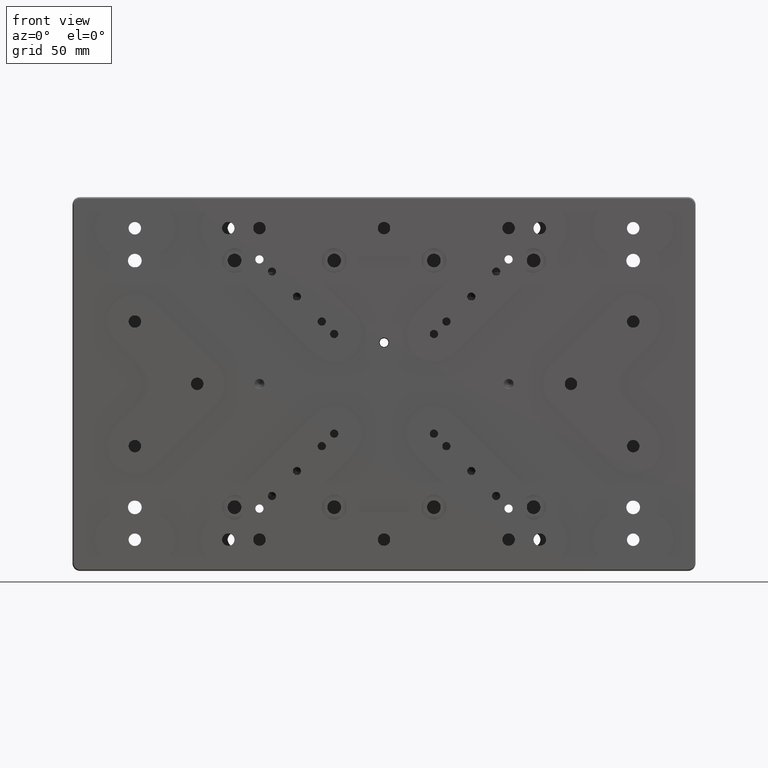
[diagram: clean part render]
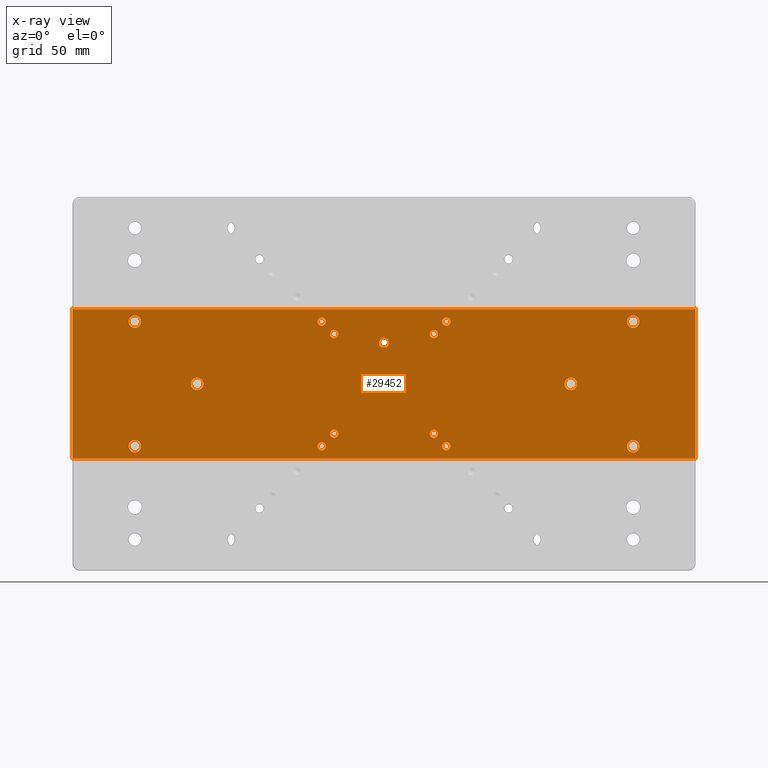
[diagram: x-ray — body ghosted, one internal face saturated and labeled with its STEP entity id]
A machine part, front view, then the same camera in x-ray: the body is ghosted and one INTERNAL B-rep face — a face not visible from any outside direction — is saturated and labeled: STEP entity #29452.
In plain terms, the highlighted planar face has unit normal (0, 1, 0).
Its self-contained STEP definition (entity closure, byte-faithful):
#65 = DIRECTION ( 'NONE',  ( 0.000000000000000000, -1.000000000000000000, 0.000000000000000000 ) ) ;
#69 = LINE ( 'NONE', #10940, #31360 ) ;
#232 = CARTESIAN_POINT ( 'NONE',  ( -25.00000000000000000, -11.50000000000000000, 25.00000000000000000 ) ) ;
#299 = EDGE_LOOP ( 'NONE', ( #26394 ) ) ;
#330 = CIRCLE ( 'NONE', #27154, 2.499999999999998668 ) ;
#509 = FACE_BOUND ( 'NONE', #10837, .T. ) ;
#673 = FACE_BOUND ( 'NONE', #31750, .T. ) ;
#863 = FACE_BOUND ( 'NONE', #31846, .T. ) ;
#1317 = AXIS2_PLACEMENT_3D ( 'NONE', #28693, #4222, #1544 ) ;
#1420 = AXIS2_PLACEMENT_3D ( 'NONE', #4090, #6609, #34471 ) ;
#1447 = CARTESIAN_POINT ( 'NONE',  ( -125.0000000000000000, -11.50000000000000000, -30.00000000000000000 ) ) ;
#1544 = DIRECTION ( 'NONE',  ( 0.000000000000000000, 0.000000000000000000, -1.000000000000000000 ) ) ;
#1662 = CARTESIAN_POINT ( 'NONE',  ( -100.0000000000000000, -11.50000000000000000, 25.00000000000000000 ) ) ;
#1830 = AXIS2_PLACEMENT_3D ( 'NONE', #15720, #32511, #27334 ) ;
#2527 = VERTEX_POINT ( 'NONE', #32002 ) ;
#2661 = VERTEX_POINT ( 'NONE', #13168 ) ;
#2836 = DIRECTION ( 'NONE',  ( 0.000000000000000000, 0.000000000000000000, -1.000000000000000000 ) ) ;
#2873 = VERTEX_POINT ( 'NONE', #13748 ) ;
#3050 = CIRCLE ( 'NONE', #5344, 2.500000000000000000 ) ;
#3084 = DIRECTION ( 'NONE',  ( 0.000000000000000000, -1.000000000000000000, 0.000000000000000000 ) ) ;
#3153 = ORIENTED_EDGE ( 'NONE', *, *, #13396, .T. ) ;
#3167 = CARTESIAN_POINT ( 'NONE',  ( -124.5000000000000000, -11.49999999999999645, -30.50000000000000000 ) ) ;
#3186 = FACE_BOUND ( 'NONE', #20666, .T. ) ;
#3304 = LINE ( 'NONE', #5791, #30454 ) ;
#4090 = CARTESIAN_POINT ( 'NONE',  ( -25.00000000000000000, -11.50000000000000000, -25.00000000000000000 ) ) ;
#4222 = DIRECTION ( 'NONE',  ( 0.000000000000000000, -1.000000000000000000, 0.000000000000000000 ) ) ;
#4281 = AXIS2_PLACEMENT_3D ( 'NONE', #17835, #15164, #26072 ) ;
#4713 = EDGE_LOOP ( 'NONE', ( #7370 ) ) ;
#4797 = CARTESIAN_POINT ( 'NONE',  ( 125.0000000000000000, -11.50000000000000178, -30.50000000000000000 ) ) ;
#4851 = DIRECTION ( 'NONE',  ( -0.000000000000000000, 0.000000000000000000, -1.000000000000000000 ) ) ;
#4875 = EDGE_LOOP ( 'NONE', ( #13585 ) ) ;
#4988 = CARTESIAN_POINT ( 'NONE',  ( 75.00000000000000000, -11.50000000000000000, -2.500000000000000000 ) ) ;
#5112 = VERTEX_POINT ( 'NONE', #23502 ) ;
#5207 = VERTEX_POINT ( 'NONE', #30903 ) ;
#5229 = DIRECTION ( 'NONE',  ( 0.000000000000000000, -1.000000000000000000, 0.000000000000000000 ) ) ;
#5272 = EDGE_CURVE ( 'NONE', #23163, #23163, #22255, .T. ) ;
#5344 = AXIS2_PLACEMENT_3D ( 'NONE', #34617, #15644, #12966 ) ;
#5723 = VERTEX_POINT ( 'NONE', #30749 ) ;
#5791 = CARTESIAN_POINT ( 'NONE',  ( -125.0000000000000000, -11.50000000000000000, -30.00000000000000000 ) ) ;
#5849 = PLANE ( 'NONE',  #20432 ) ;
#6140 = CARTESIAN_POINT ( 'NONE',  ( 124.5000000000000000, -11.50000000000000178, -30.00000000000000000 ) ) ;
#6376 = ORIENTED_EDGE ( 'NONE', *, *, #5272, .T. ) ;
#6420 = ORIENTED_EDGE ( 'NONE', *, *, #7677, .T. ) ;
#6479 = CIRCLE ( 'NONE', #26483, 1.649999999999998579 ) ;
#6609 = DIRECTION ( 'NONE',  ( 0.000000000000000000, -1.000000000000000000, 0.000000000000000000 ) ) ;
#6765 = CARTESIAN_POINT ( 'NONE',  ( 25.00000000000000000, -11.50000000000000000, 25.00000000000000000 ) ) ;
#6795 = LINE ( 'NONE', #1447, #30970 ) ;
#6894 = CARTESIAN_POINT ( 'NONE',  ( -20.00000000000000000, -11.50000000000000000, -20.00000000000000000 ) ) ;
#7057 = ORIENTED_EDGE ( 'NONE', *, *, #20765, .F. ) ;
#7095 = CARTESIAN_POINT ( 'NONE',  ( -100.0000000000000000, -11.50000000000000000, -27.50000000000000000 ) ) ;
#7370 = ORIENTED_EDGE ( 'NONE', *, *, #14129, .T. ) ;
#7622 = CIRCLE ( 'NONE', #27004, 1.649999999999998579 ) ;
#7677 = EDGE_CURVE ( 'NONE', #5112, #5112, #10997, .T. ) ;
#7712 = ORIENTED_EDGE ( 'NONE', *, *, #11577, .T. ) ;
#7749 = AXIS2_PLACEMENT_3D ( 'NONE', #3167, #33014, #35169 ) ;
#7811 = ORIENTED_EDGE ( 'NONE', *, *, #33469, .T. ) ;
#7878 = LINE ( 'NONE', #29671, #15636 ) ;
#7958 = EDGE_CURVE ( 'NONE', #31452, #5207, #3304, .T. ) ;
#8004 = ORIENTED_EDGE ( 'NONE', *, *, #32095, .T. ) ;
#8538 = FACE_BOUND ( 'NONE', #32558, .T. ) ;
#9030 = ORIENTED_EDGE ( 'NONE', *, *, #30472, .F. ) ;
#9117 = VERTEX_POINT ( 'NONE', #27787 ) ;
#9616 = ORIENTED_EDGE ( 'NONE', *, *, #28566, .T. ) ;
#9719 = EDGE_CURVE ( 'NONE', #9117, #13105, #7878, .T. ) ;
#9967 = CARTESIAN_POINT ( 'NONE',  ( 25.00000000000000000, -11.50000000000000000, -25.00000000000000000 ) ) ;
#10371 = AXIS2_PLACEMENT_3D ( 'NONE', #6894, #15817, #29418 ) ;
#10474 = CARTESIAN_POINT ( 'NONE',  ( -100.0000000000000000, -11.50000000000000000, -25.00000000000000000 ) ) ;
#10682 = VERTEX_POINT ( 'NONE', #4988 ) ;
#10837 = EDGE_LOOP ( 'NONE', ( #9616 ) ) ;
#10940 = CARTESIAN_POINT ( 'NONE',  ( -125.0000000000000000, -11.50000000000000000, 30.00000000000000000 ) ) ;
#10985 = EDGE_LOOP ( 'NONE', ( #11486 ) ) ;
#10997 = CIRCLE ( 'NONE', #1317, 2.499999999999998668 ) ;
#11486 = ORIENTED_EDGE ( 'NONE', *, *, #35239, .T. ) ;
#11505 = CIRCLE ( 'NONE', #1830, 0.5000000000000004441 ) ;
#11577 = EDGE_CURVE ( 'NONE', #26469, #26469, #6479, .T. ) ;
#11888 = ORIENTED_EDGE ( 'NONE', *, *, #17295, .T. ) ;
#12288 = DIRECTION ( 'NONE',  ( 0.000000000000000000, -1.000000000000000000, 0.000000000000000000 ) ) ;
#12480 = VERTEX_POINT ( 'NONE', #32213 ) ;
#12521 = AXIS2_PLACEMENT_3D ( 'NONE', #34833, #13017, #2836 ) ;
#12644 = VERTEX_POINT ( 'NONE', #23028 ) ;
#12696 = VERTEX_POINT ( 'NONE', #19456 ) ;
#12895 = DIRECTION ( 'NONE',  ( -0.000000000000000000, 1.000000000000000000, -0.000000000000000000 ) ) ;
#12966 = DIRECTION ( 'NONE',  ( 0.000000000000000000, 0.000000000000000000, -1.000000000000000000 ) ) ;
#13017 = DIRECTION ( 'NONE',  ( -0.000000000000000000, 1.000000000000000000, -0.000000000000000000 ) ) ;
#13059 = DIRECTION ( 'NONE',  ( 0.000000000000000000, 0.000000000000000000, -1.000000000000000000 ) ) ;
#13105 = VERTEX_POINT ( 'NONE', #4797 ) ;
#13168 = CARTESIAN_POINT ( 'NONE',  ( 20.00000000000000000, -11.50000000000000000, -21.64999999999999858 ) ) ;
#13360 = VERTEX_POINT ( 'NONE', #30002 ) ;
#13396 = EDGE_CURVE ( 'NONE', #17891, #17891, #34915, .T. ) ;
#13585 = ORIENTED_EDGE ( 'NONE', *, *, #21908, .T. ) ;
#13706 = FACE_BOUND ( 'NONE', #10985, .T. ) ;
#13732 = EDGE_CURVE ( 'NONE', #9117, #12480, #11505, .T. ) ;
#13748 = CARTESIAN_POINT ( 'NONE',  ( -75.00000000000000000, -11.50000000000000000, -2.500000000000000000 ) ) ;
#13886 = FACE_BOUND ( 'NONE', #16415, .T. ) ;
#13939 = VERTEX_POINT ( 'NONE', #22690 ) ;
#13972 = DIRECTION ( 'NONE',  ( 0.000000000000000000, 0.000000000000000000, -1.000000000000000000 ) ) ;
#13991 = AXIS2_PLACEMENT_3D ( 'NONE', #15754, #12895, #21468 ) ;
#14129 = EDGE_CURVE ( 'NONE', #2527, #2527, #28068, .T. ) ;
#14292 = DIRECTION ( 'NONE',  ( 0.000000000000000000, -0.000000000000000000, 1.000000000000000000 ) ) ;
#14533 = DIRECTION ( 'NONE',  ( -1.000000000000000000, -0.000000000000000000, 0.000000000000000000 ) ) ;
#14762 = CARTESIAN_POINT ( 'NONE',  ( -20.00000000000000000, -11.50000000000000000, 18.35000000000000142 ) ) ;
#15032 = CARTESIAN_POINT ( 'NONE',  ( 25.00000000000000000, -11.50000000000000000, 23.35000000000000142 ) ) ;
#15156 = CIRCLE ( 'NONE', #7749, 0.5000000000000004441 ) ;
#15164 = DIRECTION ( 'NONE',  ( 0.000000000000000000, -1.000000000000000000, 0.000000000000000000 ) ) ;
#15316 = EDGE_CURVE ( 'NONE', #2873, #2873, #3050, .T. ) ;
#15636 = VECTOR ( 'NONE', #4851, 1000.000000000000000 ) ;
#15644 = DIRECTION ( 'NONE',  ( 0.000000000000000000, -1.000000000000000000, 0.000000000000000000 ) ) ;
#15720 = CARTESIAN_POINT ( 'NONE',  ( 124.5000000000000000, -11.49999999999999645, 30.50000000000000000 ) ) ;
#15754 = CARTESIAN_POINT ( 'NONE',  ( 124.5000000000000000, -11.50000000000000355, -30.50000000000000000 ) ) ;
#15809 = CARTESIAN_POINT ( 'NONE',  ( 0.000000000000000000, -11.50000000000000000, 16.57000000000000028 ) ) ;
#15817 = DIRECTION ( 'NONE',  ( 0.000000000000000000, -1.000000000000000000, 0.000000000000000000 ) ) ;
#15972 = AXIS2_PLACEMENT_3D ( 'NONE', #21834, #65, #30081 ) ;
#16012 = DIRECTION ( 'NONE',  ( 0.000000000000000000, 0.000000000000000000, -1.000000000000000000 ) ) ;
#16392 = CARTESIAN_POINT ( 'NONE',  ( -125.0000000000000000, -11.50000000000000000, -30.00000000000000000 ) ) ;
#16415 = EDGE_LOOP ( 'NONE', ( #19361 ) ) ;
#16495 = VERTEX_POINT ( 'NONE', #31798 ) ;
#16600 = EDGE_CURVE ( 'NONE', #13939, #13939, #33387, .T. ) ;
#16605 = VERTEX_POINT ( 'NONE', #32997 ) ;
#16623 = EDGE_LOOP ( 'NONE', ( #3153 ) ) ;
#16742 = DIRECTION ( 'NONE',  ( 0.000000000000000000, -0.000000000000000000, 1.000000000000000000 ) ) ;
#16816 = CIRCLE ( 'NONE', #1420, 1.649999999999998579 ) ;
#16937 = CARTESIAN_POINT ( 'NONE',  ( 25.00000000000000000, -11.50000000000000000, -26.64999999999999858 ) ) ;
#17295 = EDGE_CURVE ( 'NONE', #5723, #5723, #330, .T. ) ;
#17634 = VERTEX_POINT ( 'NONE', #7095 ) ;
#17655 = DIRECTION ( 'NONE',  ( 0.000000000000000000, 0.000000000000000000, -1.000000000000000000 ) ) ;
#17835 = CARTESIAN_POINT ( 'NONE',  ( 75.00000000000000000, -11.50000000000000000, 0.000000000000000000 ) ) ;
#17891 = VERTEX_POINT ( 'NONE', #28815 ) ;
#18780 = EDGE_CURVE ( 'NONE', #31452, #13105, #25965, .T. ) ;
#19361 = ORIENTED_EDGE ( 'NONE', *, *, #35306, .T. ) ;
#19423 = FACE_BOUND ( 'NONE', #34807, .T. ) ;
#19456 = CARTESIAN_POINT ( 'NONE',  ( -125.0000000000000000, -11.50000000000000178, 30.50000000000000000 ) ) ;
#19813 = EDGE_LOOP ( 'NONE', ( #11888 ) ) ;
#19952 = FACE_BOUND ( 'NONE', #4713, .T. ) ;
#20432 = AXIS2_PLACEMENT_3D ( 'NONE', #16392, #33384, #16742 ) ;
#20666 = EDGE_LOOP ( 'NONE', ( #7712 ) ) ;
#20765 = EDGE_CURVE ( 'NONE', #16495, #5207, #15156, .T. ) ;
#20872 = DIRECTION ( 'NONE',  ( 0.000000000000000000, 0.000000000000000000, -1.000000000000000000 ) ) ;
#20995 = DIRECTION ( 'NONE',  ( 0.000000000000000000, 0.000000000000000000, -1.000000000000000000 ) ) ;
#21373 = CIRCLE ( 'NONE', #4281, 2.500000000000000000 ) ;
#21385 = DIRECTION ( 'NONE',  ( 0.000000000000000000, -1.000000000000000000, 0.000000000000000000 ) ) ;
#21468 = DIRECTION ( 'NONE',  ( 0.000000000000000000, 0.000000000000000000, -1.000000000000000000 ) ) ;
#21573 = ORIENTED_EDGE ( 'NONE', *, *, #13732, .F. ) ;
#21834 = CARTESIAN_POINT ( 'NONE',  ( -20.00000000000000000, -11.50000000000000000, 20.00000000000000000 ) ) ;
#21908 = EDGE_CURVE ( 'NONE', #2661, #2661, #7622, .T. ) ;
#21938 = FACE_BOUND ( 'NONE', #16623, .T. ) ;
#22086 = DIRECTION ( 'NONE',  ( 0.000000000000000000, 0.000000000000000000, -1.000000000000000000 ) ) ;
#22255 = CIRCLE ( 'NONE', #15972, 1.649999999999998579 ) ;
#22462 = FACE_BOUND ( 'NONE', #25765, .T. ) ;
#22642 = FACE_BOUND ( 'NONE', #299, .T. ) ;
#22690 = CARTESIAN_POINT ( 'NONE',  ( 100.0000000000000000, -11.50000000000000000, -27.50000000000000000 ) ) ;
#22936 = ORIENTED_EDGE ( 'NONE', *, *, #18780, .F. ) ;
#23028 = CARTESIAN_POINT ( 'NONE',  ( -25.00000000000000000, -11.50000000000000000, 23.35000000000000142 ) ) ;
#23163 = VERTEX_POINT ( 'NONE', #14762 ) ;
#23282 = EDGE_CURVE ( 'NONE', #25147, #25147, #25285, .T. ) ;
#23502 = CARTESIAN_POINT ( 'NONE',  ( 100.0000000000000000, -11.50000000000000000, 22.50000000000000355 ) ) ;
#23682 = CARTESIAN_POINT ( 'NONE',  ( 20.00000000000000000, -11.50000000000000000, -20.00000000000000000 ) ) ;
#24186 = AXIS2_PLACEMENT_3D ( 'NONE', #232, #3084, #13972 ) ;
#24616 = AXIS2_PLACEMENT_3D ( 'NONE', #29712, #5229, #32570 ) ;
#24794 = FACE_BOUND ( 'NONE', #19813, .T. ) ;
#24975 = ORIENTED_EDGE ( 'NONE', *, *, #9719, .T. ) ;
#25143 = FACE_BOUND ( 'NONE', #29487, .T. ) ;
#25147 = VERTEX_POINT ( 'NONE', #16937 ) ;
#25285 = CIRCLE ( 'NONE', #28143, 1.649999999999998579 ) ;
#25765 = EDGE_LOOP ( 'NONE', ( #7811 ) ) ;
#25965 = CIRCLE ( 'NONE', #13991, 0.5000000000000004441 ) ;
#26072 = DIRECTION ( 'NONE',  ( 0.000000000000000000, 0.000000000000000000, -1.000000000000000000 ) ) ;
#26394 = ORIENTED_EDGE ( 'NONE', *, *, #15316, .T. ) ;
#26469 = VERTEX_POINT ( 'NONE', #15032 ) ;
#26483 = AXIS2_PLACEMENT_3D ( 'NONE', #6765, #12288, #17655 ) ;
#26508 = AXIS2_PLACEMENT_3D ( 'NONE', #29955, #30131, #22086 ) ;
#26728 = DIRECTION ( 'NONE',  ( -0.000000000000000000, -1.000000000000000000, -0.000000000000000000 ) ) ;
#26895 = EDGE_CURVE ( 'NONE', #17634, #17634, #28362, .T. ) ;
#27004 = AXIS2_PLACEMENT_3D ( 'NONE', #23682, #31372, #20995 ) ;
#27154 = AXIS2_PLACEMENT_3D ( 'NONE', #1662, #31478, #13059 ) ;
#27237 = CIRCLE ( 'NONE', #31802, 2.000000000000001776 ) ;
#27334 = DIRECTION ( 'NONE',  ( 0.000000000000000000, 0.000000000000000000, 1.000000000000000000 ) ) ;
#27787 = CARTESIAN_POINT ( 'NONE',  ( 125.0000000000000000, -11.49999999999999822, 30.50000000000000000 ) ) ;
#27808 = ORIENTED_EDGE ( 'NONE', *, *, #23282, .T. ) ;
#27854 = ORIENTED_EDGE ( 'NONE', *, *, #7958, .T. ) ;
#28068 = CIRCLE ( 'NONE', #10371, 1.649999999999998579 ) ;
#28143 = AXIS2_PLACEMENT_3D ( 'NONE', #9967, #35178, #20872 ) ;
#28362 = CIRCLE ( 'NONE', #28932, 2.499999999999998668 ) ;
#28566 = EDGE_CURVE ( 'NONE', #32085, #32085, #27237, .T. ) ;
#28693 = CARTESIAN_POINT ( 'NONE',  ( 100.0000000000000000, -11.50000000000000000, 25.00000000000000000 ) ) ;
#28815 = CARTESIAN_POINT ( 'NONE',  ( 20.00000000000000000, -11.50000000000000000, 18.35000000000000142 ) ) ;
#28932 = AXIS2_PLACEMENT_3D ( 'NONE', #10474, #21385, #16012 ) ;
#29418 = DIRECTION ( 'NONE',  ( 0.000000000000000000, 0.000000000000000000, -1.000000000000000000 ) ) ;
#29426 = ORIENTED_EDGE ( 'NONE', *, *, #30247, .T. ) ;
#29452 = ADVANCED_FACE ( 'NONE', ( #13886, #22642, #25143, #863, #24794, #673, #8538, #509, #19423, #21938, #19952, #30332, #22462, #3186, #13706, #33560 ), #5849, .T. ) ;
#29487 = EDGE_LOOP ( 'NONE', ( #6420 ) ) ;
#29654 = ORIENTED_EDGE ( 'NONE', *, *, #16600, .T. ) ;
#29671 = CARTESIAN_POINT ( 'NONE',  ( 125.0000000000000000, -11.50000000000000000, -30.00000000000000000 ) ) ;
#29712 = CARTESIAN_POINT ( 'NONE',  ( 20.00000000000000000, -11.50000000000000000, 20.00000000000000000 ) ) ;
#29955 = CARTESIAN_POINT ( 'NONE',  ( 100.0000000000000000, -11.50000000000000000, -25.00000000000000000 ) ) ;
#30002 = CARTESIAN_POINT ( 'NONE',  ( -25.00000000000000000, -11.50000000000000000, -26.64999999999999858 ) ) ;
#30081 = DIRECTION ( 'NONE',  ( 0.000000000000000000, 0.000000000000000000, -1.000000000000000000 ) ) ;
#30085 = DIRECTION ( 'NONE',  ( 1.000000000000000000, 0.000000000000000000, -0.000000000000000000 ) ) ;
#30131 = DIRECTION ( 'NONE',  ( 0.000000000000000000, -1.000000000000000000, 0.000000000000000000 ) ) ;
#30247 = EDGE_CURVE ( 'NONE', #16605, #12480, #69, .T. ) ;
#30332 = FACE_BOUND ( 'NONE', #4875, .T. ) ;
#30454 = VECTOR ( 'NONE', #14533, 1000.000000000000000 ) ;
#30472 = EDGE_CURVE ( 'NONE', #16605, #12696, #33080, .T. ) ;
#30749 = CARTESIAN_POINT ( 'NONE',  ( -100.0000000000000000, -11.50000000000000000, 22.50000000000000355 ) ) ;
#30903 = CARTESIAN_POINT ( 'NONE',  ( -124.5000000000000000, -11.49999999999999822, -30.00000000000000000 ) ) ;
#30970 = VECTOR ( 'NONE', #14292, 1000.000000000000000 ) ;
#31360 = VECTOR ( 'NONE', #30085, 1000.000000000000000 ) ;
#31372 = DIRECTION ( 'NONE',  ( 0.000000000000000000, -1.000000000000000000, 0.000000000000000000 ) ) ;
#31452 = VERTEX_POINT ( 'NONE', #6140 ) ;
#31478 = DIRECTION ( 'NONE',  ( 0.000000000000000000, -1.000000000000000000, 0.000000000000000000 ) ) ;
#31750 = EDGE_LOOP ( 'NONE', ( #33968 ) ) ;
#31798 = CARTESIAN_POINT ( 'NONE',  ( -125.0000000000000000, -11.49999999999999822, -30.50000000000000000 ) ) ;
#31802 = AXIS2_PLACEMENT_3D ( 'NONE', #15809, #26728, #32785 ) ;
#31846 = EDGE_LOOP ( 'NONE', ( #29654 ) ) ;
#32002 = CARTESIAN_POINT ( 'NONE',  ( -20.00000000000000000, -11.50000000000000000, -21.64999999999999858 ) ) ;
#32085 = VERTEX_POINT ( 'NONE', #35152 ) ;
#32095 = EDGE_CURVE ( 'NONE', #16495, #12696, #6795, .T. ) ;
#32213 = CARTESIAN_POINT ( 'NONE',  ( 124.5000000000000000, -11.49999999999999822, 30.00000000000000000 ) ) ;
#32511 = DIRECTION ( 'NONE',  ( 0.000000000000000000, 1.000000000000000000, 0.000000000000000000 ) ) ;
#32558 = EDGE_LOOP ( 'NONE', ( #27808 ) ) ;
#32565 = EDGE_LOOP ( 'NONE', ( #7057, #8004, #9030, #29426, #21573, #24975, #22936, #27854 ) ) ;
#32570 = DIRECTION ( 'NONE',  ( 0.000000000000000000, 0.000000000000000000, -1.000000000000000000 ) ) ;
#32785 = DIRECTION ( 'NONE',  ( 0.000000000000000000, 0.000000000000000000, 1.000000000000000000 ) ) ;
#32997 = CARTESIAN_POINT ( 'NONE',  ( -124.5000000000000000, -11.50000000000000178, 30.00000000000000000 ) ) ;
#33014 = DIRECTION ( 'NONE',  ( 0.000000000000000000, 1.000000000000000000, 0.000000000000000000 ) ) ;
#33080 = CIRCLE ( 'NONE', #12521, 0.5000000000000004441 ) ;
#33384 = DIRECTION ( 'NONE',  ( 0.000000000000000000, 1.000000000000000000, 0.000000000000000000 ) ) ;
#33387 = CIRCLE ( 'NONE', #26508, 2.499999999999998668 ) ;
#33469 = EDGE_CURVE ( 'NONE', #12644, #12644, #35047, .T. ) ;
#33560 = FACE_OUTER_BOUND ( 'NONE', #32565, .T. ) ;
#33968 = ORIENTED_EDGE ( 'NONE', *, *, #26895, .T. ) ;
#34471 = DIRECTION ( 'NONE',  ( 0.000000000000000000, 0.000000000000000000, -1.000000000000000000 ) ) ;
#34617 = CARTESIAN_POINT ( 'NONE',  ( -75.00000000000000000, -11.50000000000000000, 0.000000000000000000 ) ) ;
#34807 = EDGE_LOOP ( 'NONE', ( #6376 ) ) ;
#34833 = CARTESIAN_POINT ( 'NONE',  ( -124.5000000000000000, -11.50000000000000355, 30.50000000000000000 ) ) ;
#34915 = CIRCLE ( 'NONE', #24616, 1.649999999999998579 ) ;
#35047 = CIRCLE ( 'NONE', #24186, 1.649999999999998579 ) ;
#35152 = CARTESIAN_POINT ( 'NONE',  ( 0.000000000000000000, -11.50000000000000000, 18.57000000000000384 ) ) ;
#35169 = DIRECTION ( 'NONE',  ( 0.000000000000000000, 0.000000000000000000, 1.000000000000000000 ) ) ;
#35178 = DIRECTION ( 'NONE',  ( 0.000000000000000000, -1.000000000000000000, 0.000000000000000000 ) ) ;
#35239 = EDGE_CURVE ( 'NONE', #13360, #13360, #16816, .T. ) ;
#35306 = EDGE_CURVE ( 'NONE', #10682, #10682, #21373, .T. ) ;